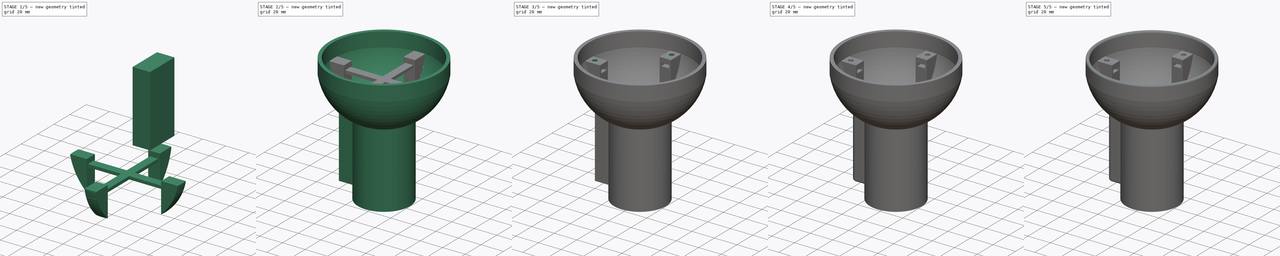
[diagram: build sequence overview — one tinted view per stage of 5, left to right]
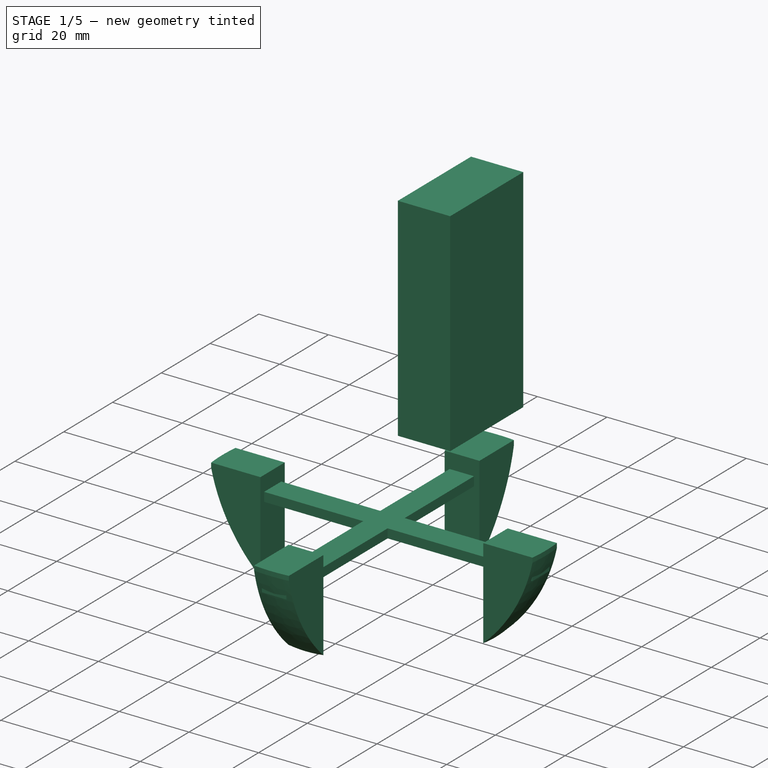
[diagram: stage 1 of 5 — iso view after this stage's code; geometry added in this stage tinted green]
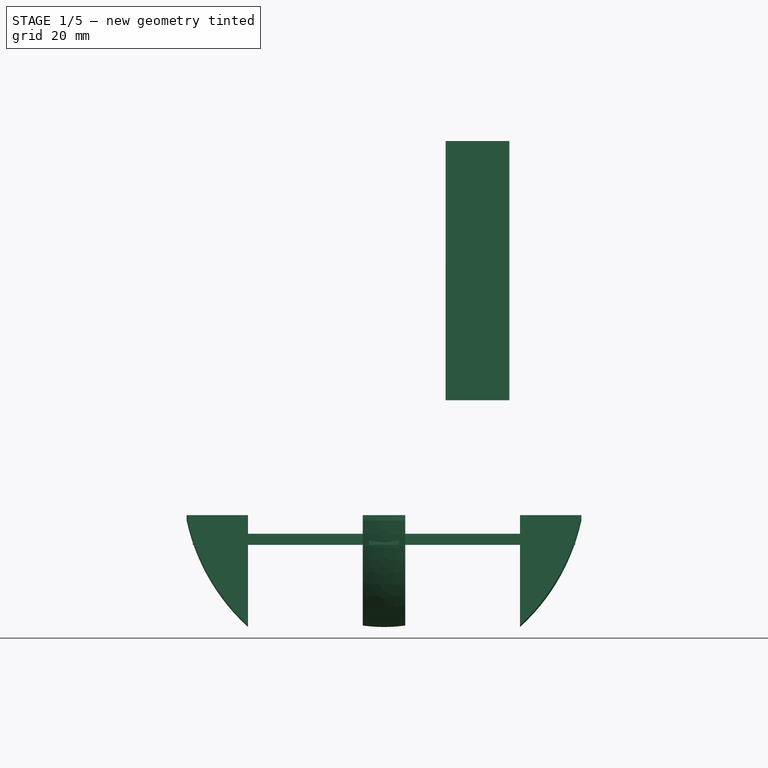
[diagram: stage 1 of 5 — front view after this stage's code; geometry added in this stage tinted green]
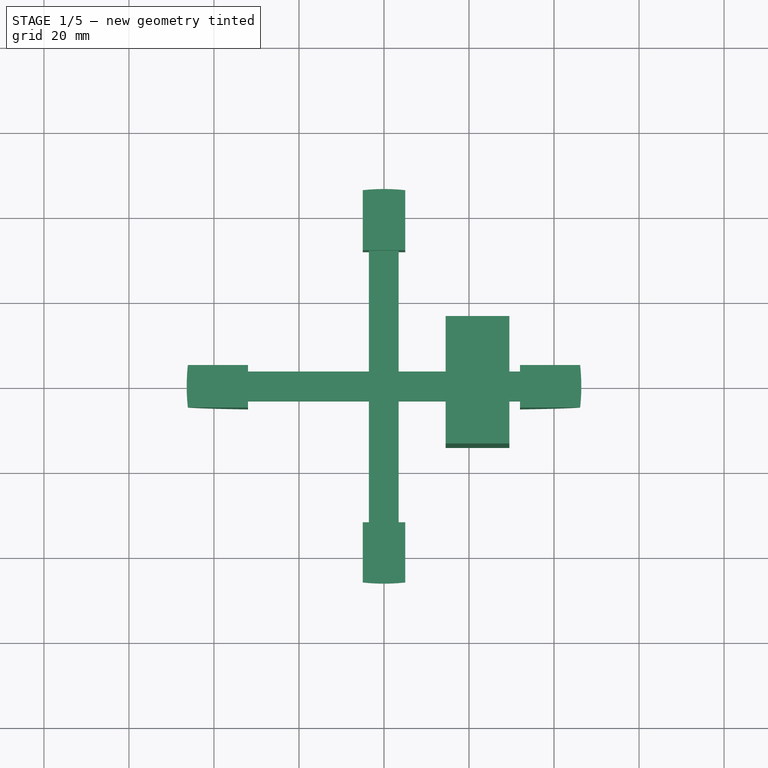
[diagram: stage 1 of 5 — top view after this stage's code; geometry added in this stage tinted green]
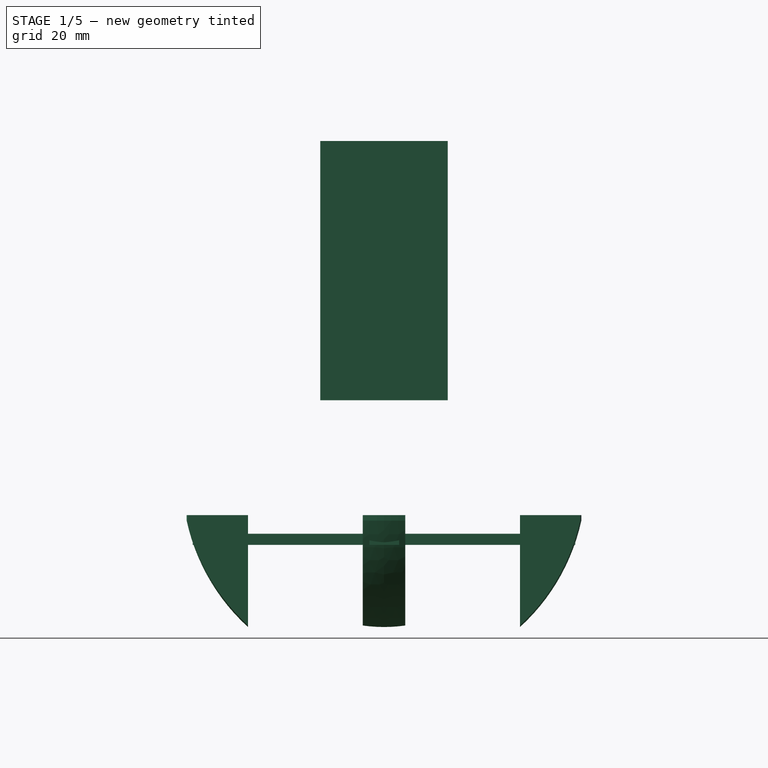
[diagram: stage 1 of 5 — right view after this stage's code; geometry added in this stage tinted green]
FCSTD DOCUMENT  (FreeCAD 0.16R6700 (Git))
Label: pieza6v2
License: CreativeCommons Attribution-ShareAlike
LicenseURL: http://creativecommons.org/licenses/by-sa/4.0/
objects: Part::Feature×9, Part::Cut×7, Part::Box×4, Part::MultiFuse×4, Part::Fillet×4, Sketcher::SketchObject×2, PartDesign::Revolution×2, Part::FeaturePython×2, Part::MultiCommon×1
note: 37 computed .brp shape members not serialized (recipe doc carries the construction recipe); baked Part::Feature solids carry a one-line shape summary decoded from their .brp

FEATURE [Part::Box] Box006  label="Cubo006"
  Height = 61
  Length = 30
  Placement = pos=(14.5,15,27) rot=(0,0,-1;1.5708rad)
  Width = 15
FEATURE [Part::Feature] Common001  label="csPreSoporte"
  shape: bbox 14.8 x 14.33 x 26.33 mm, 7 faces (baked)
FEATURE [Part::FeaturePython] Array  label="ArraySoportes"  # Draft array (typed FeaturePython)
  Angle = 360
  ArrayType = 1
  Axis = (0,0,1)
  Base = -> Common001
  Center = (0,0,0)
  Fuse = false
  IntervalAxis = (0,0,0)
  IntervalX = (1,0,0)
  IntervalY = (0,1,0)
  IntervalZ = (0,0,0)
  NumberPolar = 4
  NumberX = 2
  NumberY = 2
  NumberZ = 1
FEATURE [Part::Box] Box010  label="Cubo010"
  Height = 2.6
  Length = 90
  Placement = pos=(-45,-3.45,-7) rot=(0,0,1;0rad)
  Width = 7
FEATURE [Part::Feature] Clone016  label=" taladroTuercaM026"
  Placement = pos=(-40,-10,21.25) rot=(1,0,0;3.14159rad)
  shape: bbox 6.7 x 5.802 x 32.25 mm, 10 faces (baked)
FEATURE [Part::Box] Box011  label="Cubo011"
  Height = 2.6
  Length = 90
  Placement = pos=(3.45,-45,-7) rot=(0,0,1;1.5708rad)
  Width = 7
FEATURE [Part::MultiFuse] Fusion005
  Shapes = -> [Box010,Box011]
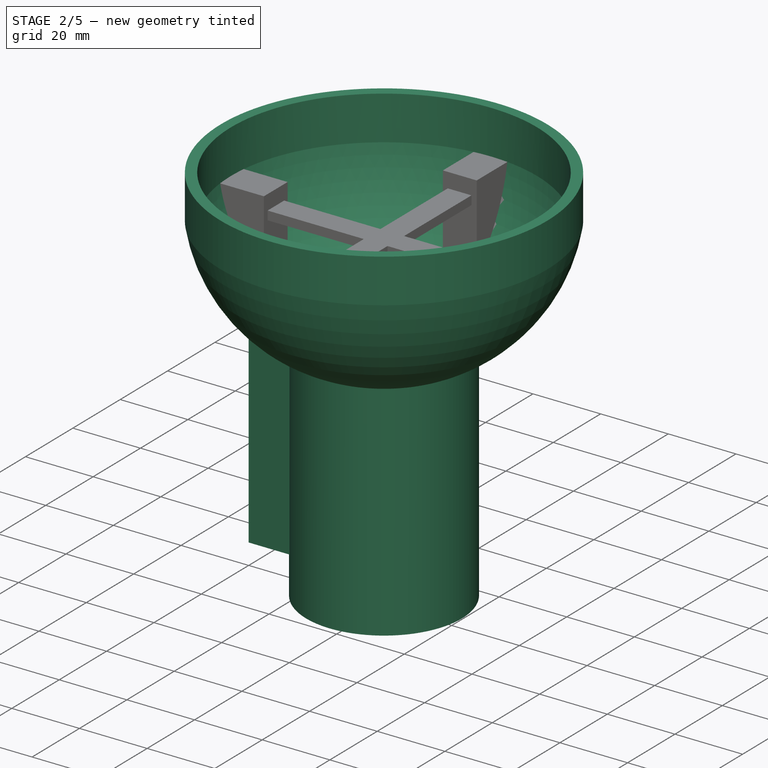
[diagram: stage 2 of 5 — iso view after this stage's code; geometry added in this stage tinted green]
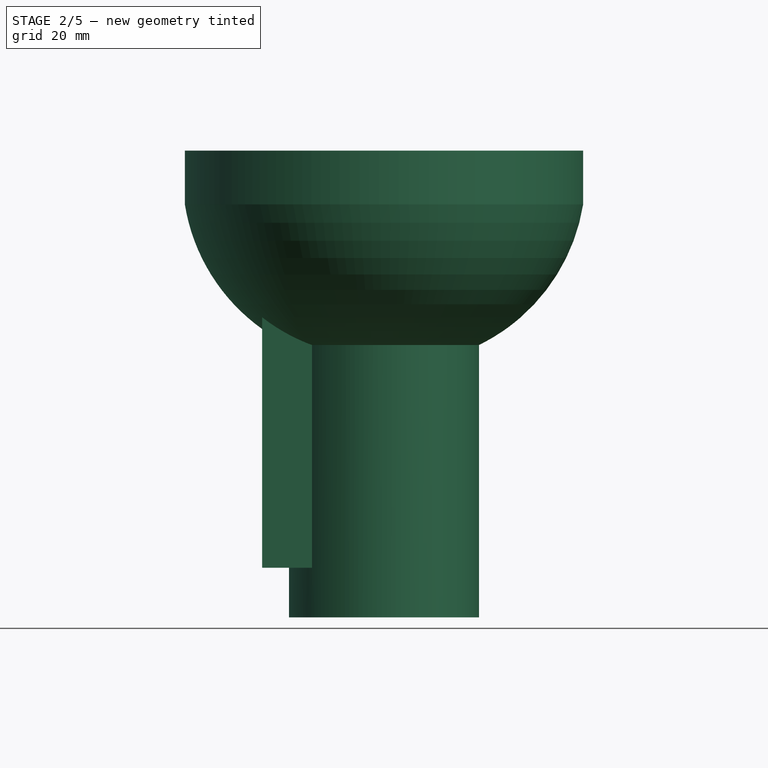
[diagram: stage 2 of 5 — front view after this stage's code; geometry added in this stage tinted green]
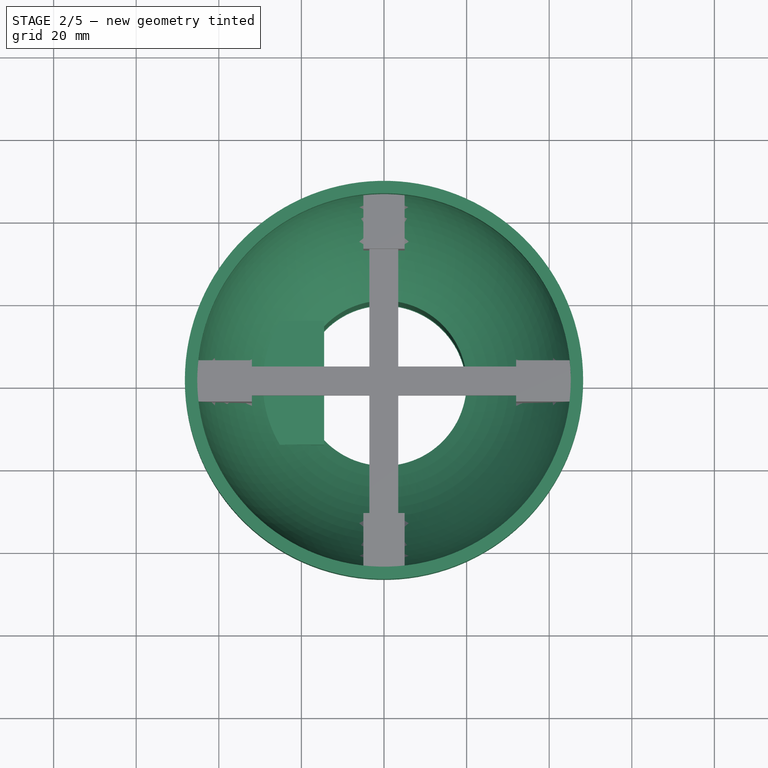
[diagram: stage 2 of 5 — top view after this stage's code; geometry added in this stage tinted green]
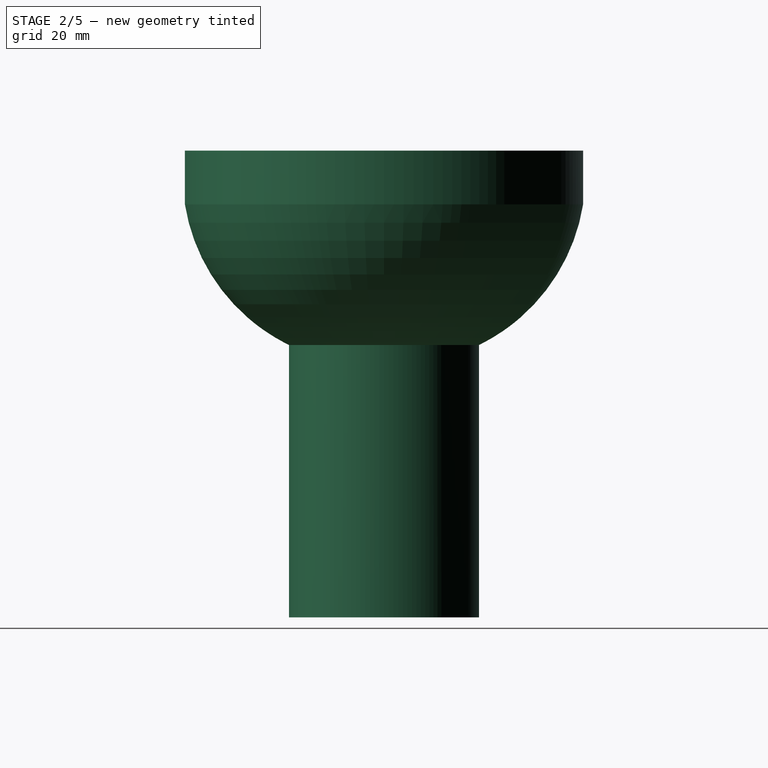
[diagram: stage 2 of 5 — right view after this stage's code; geometry added in this stage tinted green]
FEATURE [Sketcher::SketchObject] Sketch
  Placement = pos=(0,0,0) rot=(1,0,0;1.5708rad)
  sketch-geometry (10):
    g0: LineSegment StartX=20 StartY=97 StartZ=0 EndX=20 EndY=33 EndZ=0
    g1: LineSegment StartX=45.222 StartY=0 StartZ=0 EndX=45.222 EndY=-13 EndZ=0
    g2: ArcOfCircle CenterX=0 CenterY=-8.42463 CenterZ=0 NormalX=0 NormalY=0 NormalZ=1 Radius=46 StartAngle=0.184184 EndAngle=1.121
    g3: LineSegment StartX=23 StartY=100 StartZ=0 EndX=23 EndY=34.058 EndZ=0
    g4: ArcOfCircle CenterX=2.8 CenterY=-7.2695 CenterZ=0 NormalX=0 NormalY=0 NormalZ=1 Radius=46 StartAngle=0.158698 EndAngle=1.11617
    g5: LineSegment StartX=48.222 StartY=0 StartZ=0 EndX=48.222 EndY=-13 EndZ=0
    g6: LineSegment StartX=45.222 StartY=-13 StartZ=0 EndX=48.222 EndY=-13 EndZ=0
    g7: LineSegment StartX=23 StartY=100 StartZ=0 EndX=19.9 EndY=100 EndZ=0
    g8: LineSegment StartX=19.9 StartY=100 StartZ=0 EndX=19.9 EndY=97 EndZ=0
    g9: LineSegment StartX=19.9 StartY=97 StartZ=0 EndX=20 EndY=97 EndZ=0
  constraints (32):
    c: Vertical(g0)
    c: Coincident(g2,g1)
    c: Coincident(g2,g0)
    c: Vertical(g1)
    c: DistanceX(g-1,g0) = 20
    c: Radius(g2) = 46
    c: DistanceY(g1,g0) = 46
    c: PointOnObject(g2,g-2)
    c: DistanceY(g1,g0) = 110
    c: Vertical(g3)
    c: Coincident(g4,g5)
    c: Coincident(g4,g3)
    c: Vertical(g5)
    c: Equal(g2,g4) = 45
    c: DistanceX(g1,g5) = 3
    c: Coincident(g6,g1)
    c: Coincident(g6,g5)
    c: Horizontal(g6)
    c: Equal(g5,g1)
    c: PointOnObject(g4,g-1)
    c: DistanceY(g1,g1) = 13
    c: DistanceX(g2,g4) = 2.8
    c: DistanceX(g0,g3) = 3
    c: Coincident(g7,g8)
    c: Coincident(g8,g9)
    c: Horizontal(g9)
    c: Coincident(g9,g0)
    c: Vertical(g8)
    c: Coincident(g7,g3)
    c: DistanceY(g0,g3) = 3
    c: Horizontal(g7)
    c: DistanceX(g7,g7) = 3.1
FEATURE [PartDesign::Revolution] Revolution
  Angle = 360
  Axis = (0,0,1)
  Base = (0,0,0)
  Placement = pos=(0,0,0) rot=(1,0,0;1.5708rad)
  ReferenceAxis = -> Sketch [V_Axis]
  Reversed = true
  Sketch = -> Sketch
FEATURE [Part::MultiFuse] Fusion003
  Placement = pos=(0,0,74) rot=(1,0,0;3.14159rad)
FEATURE [Part::MultiFuse] Fusion
  Shapes = -> [Revolution,Box006]
FEATURE [Part::Cut] Cut  label="preCabeza"
  Base = -> Fusion
  Placement = pos=(0,0,0) rot=(0,1,0;3.14159rad)
  Tool = -> Fusion003
FEATURE [Part::MultiFuse] Fusion004
  Shapes = -> [Cut,Array]
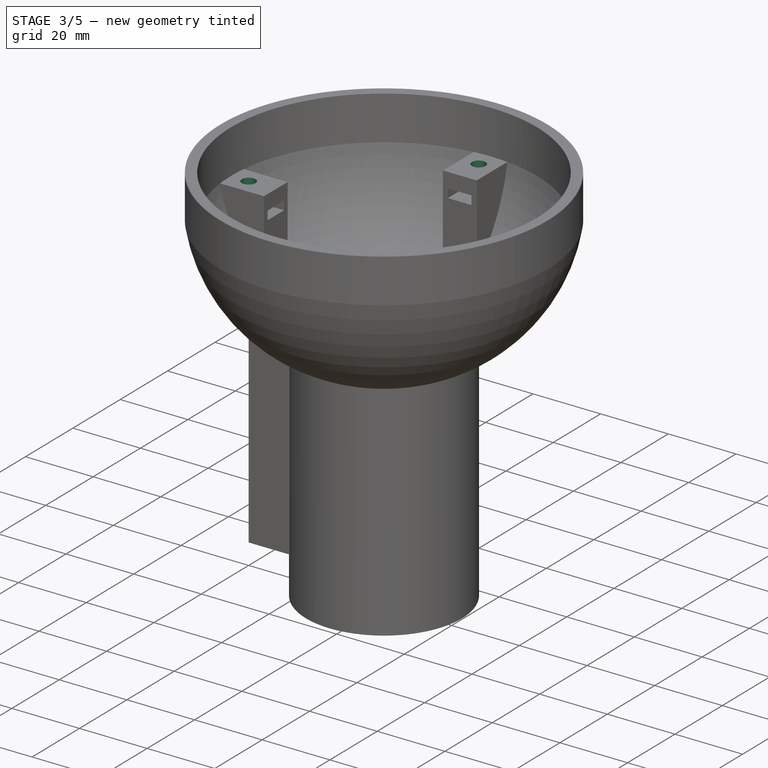
[diagram: stage 3 of 5 — iso view after this stage's code; geometry added in this stage tinted green]
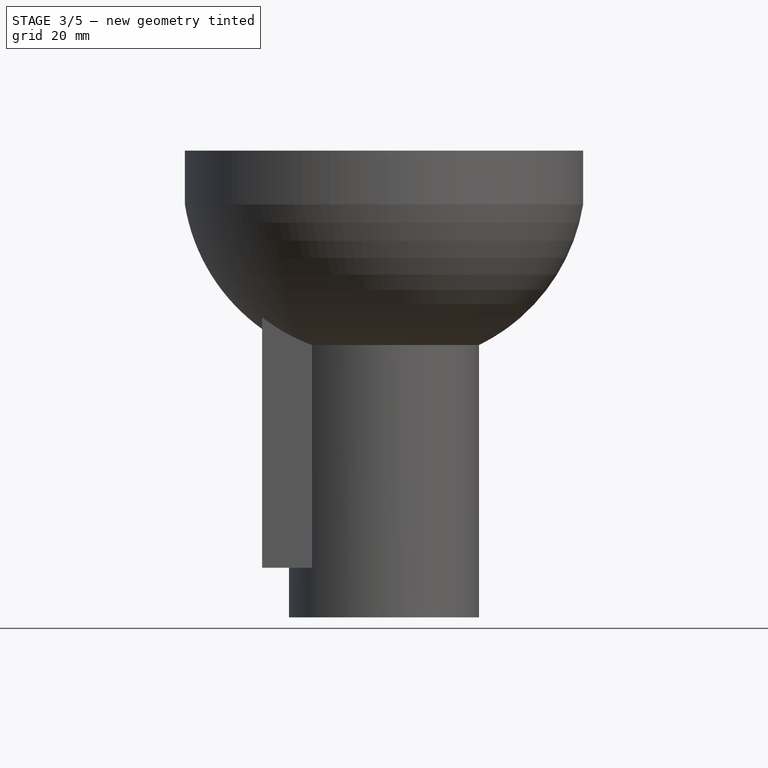
[diagram: stage 3 of 5 — front view after this stage's code; geometry added in this stage tinted green]
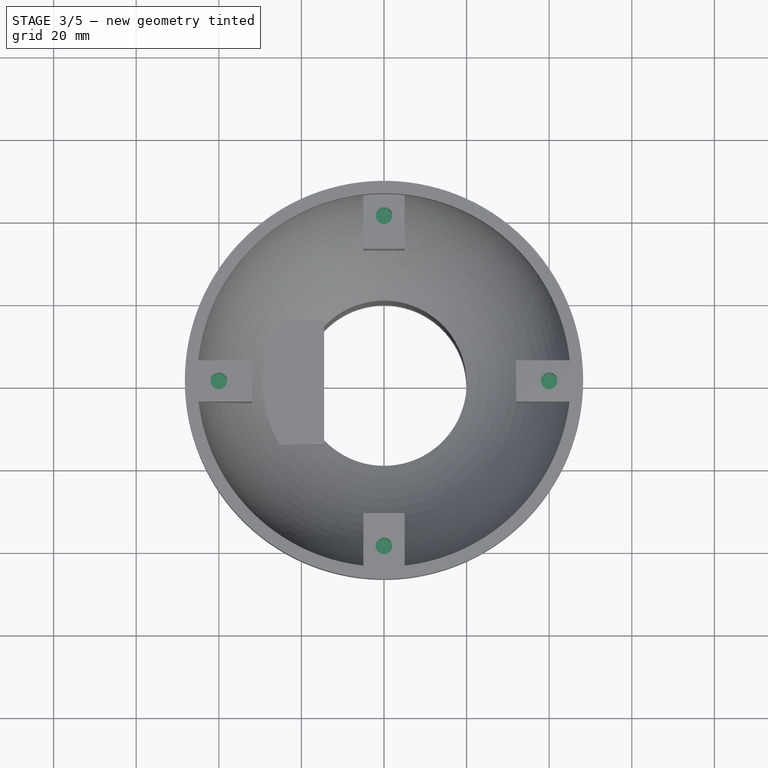
[diagram: stage 3 of 5 — top view after this stage's code; geometry added in this stage tinted green]
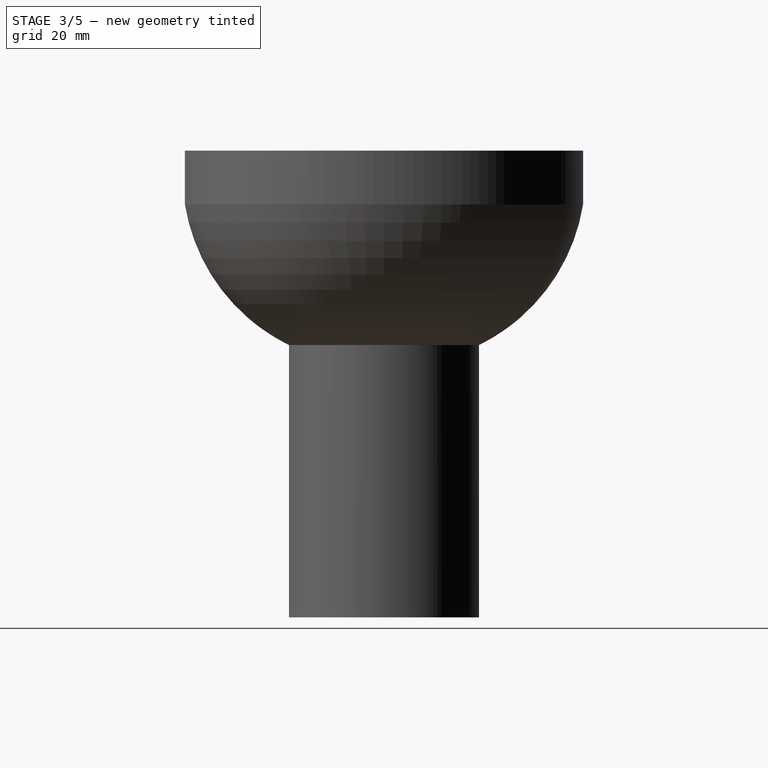
[diagram: stage 3 of 5 — right view after this stage's code; geometry added in this stage tinted green]
FEATURE [Part::FeaturePython] Array001  label="ArrayPasante"  # Draft array (typed FeaturePython)
  Angle = 360
  ArrayType = 1
  Axis = (0,0,1)
  Base = -> Clone016
  Center = (0,0,0)
  Fuse = false
  IntervalAxis = (0,0,0)
  IntervalX = (1,0,0)
  IntervalY = (0,1,0)
  IntervalZ = (0,0,0)
  NumberPolar = 4
  NumberX = 2
  NumberY = 2
  NumberZ = 1
FEATURE [Part::Cut] Cut001
  Base = -> Fusion004
  Tool = -> Fusion005
FEATURE [Part::Cut] Cut002  label="preCabeza001"
  Base = -> Cut001
  Tool = -> Array001
FEATURE [Part::Feature] Cut010  label="Futaba-3003-body-base"
  Placement = pos=(-4.5,0,-58.1) rot=(0,1,0;4.71239rad)
  shape: bbox 40.28 x 20 x 55.26 mm, 242 faces (baked)
FEATURE [Part::Feature] Clone017  label=" taladroTuercaM027"
  Placement = pos=(-14.4,-5.01,-43.62) rot=(0.57735,0.57735,-0.57735;4.18879rad)
  shape: bbox 32.25 x 6.7 x 5.802 mm, 10 faces (baked)
FEATURE [Part::Feature] Clone018  label=" taladroTuercaM028"
  Placement = pos=(-14.4,5.01,-43.62) rot=(0.57735,0.57735,-0.57735;4.18879rad)
  shape: bbox 32.25 x 6.7 x 5.802 mm, 10 faces (baked)
FEATURE [Part::Feature] Clone019  label=" taladroTuercaM029"
  Placement = pos=(-14.4,-5.01,-92.58) rot=(0.57735,0.57735,-0.57735;4.18879rad)
  shape: bbox 32.25 x 6.7 x 5.802 mm, 10 faces (baked)
FEATURE [Part::Feature] Clone020  label=" taladroTuercaM030"
  Placement = pos=(-14.4,5.01,-92.58) rot=(0.57735,0.57735,-0.57735;4.18879rad)
  shape: bbox 32.25 x 6.7 x 5.802 mm, 10 faces (baked)
FEATURE [Part::Cut] Cut011
  Base = -> Cut002
  Tool = -> Clone017
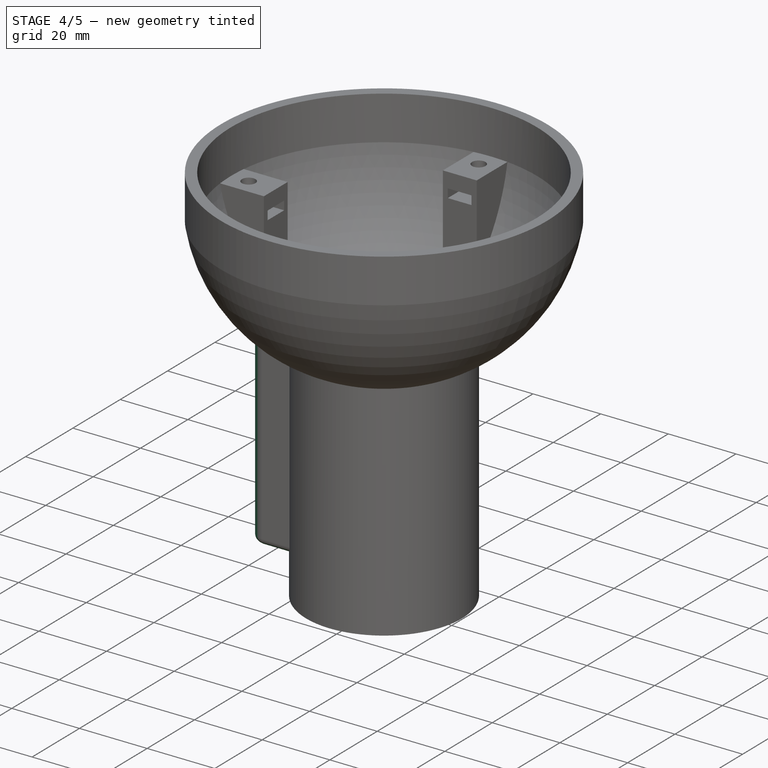
[diagram: stage 4 of 5 — iso view after this stage's code; geometry added in this stage tinted green]
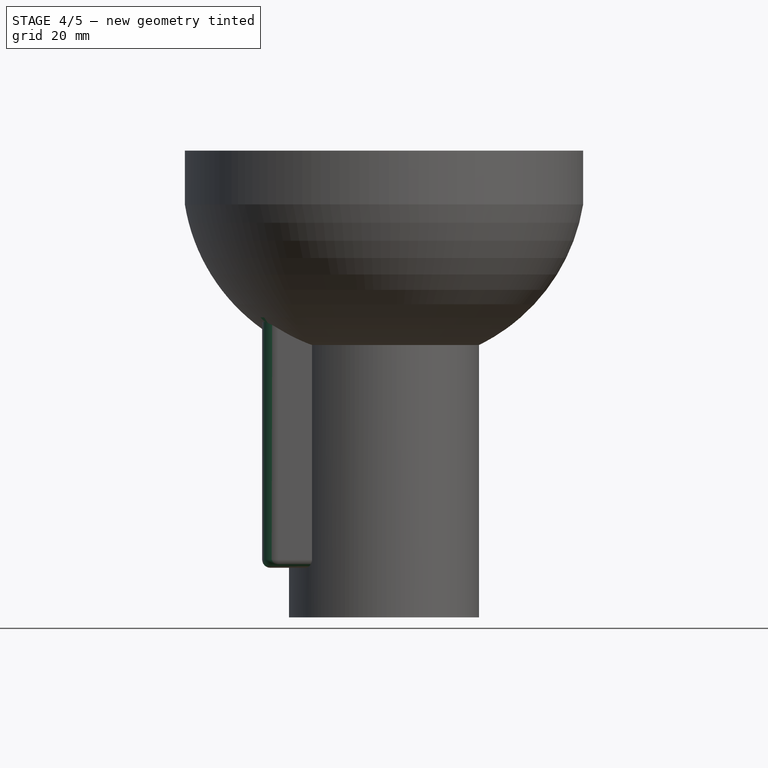
[diagram: stage 4 of 5 — front view after this stage's code; geometry added in this stage tinted green]
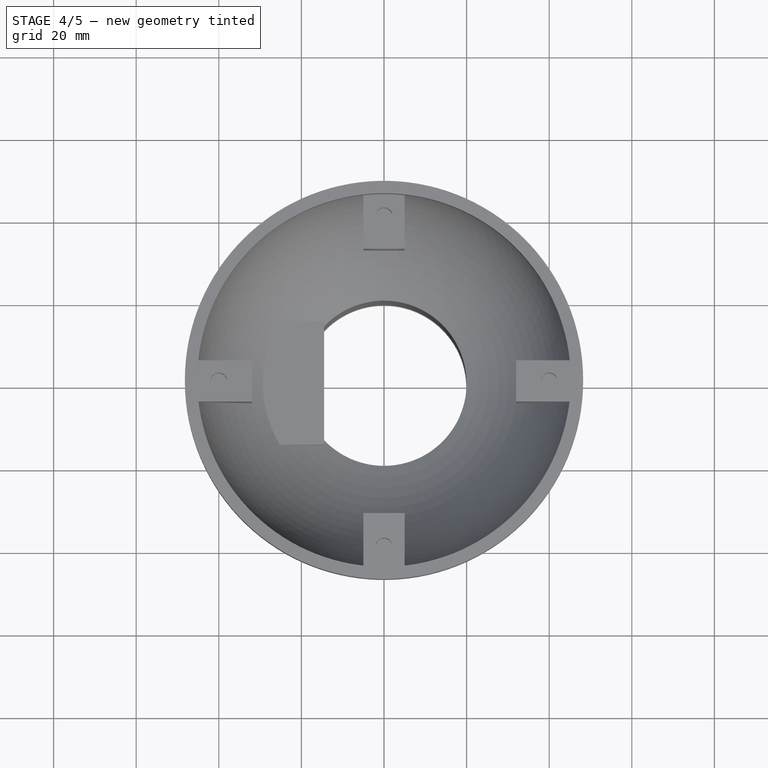
[diagram: stage 4 of 5 — top view after this stage's code; geometry added in this stage tinted green]
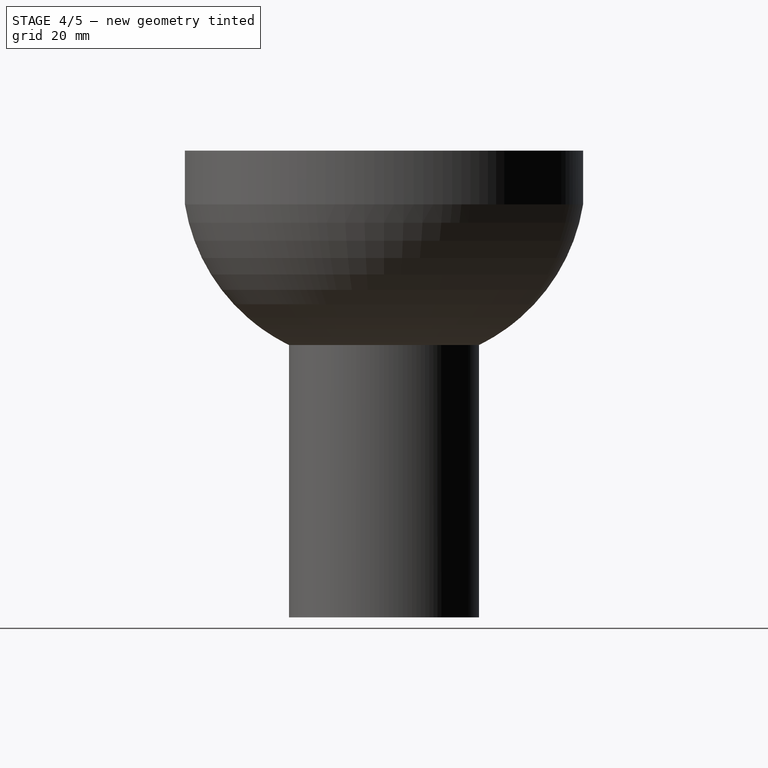
[diagram: stage 4 of 5 — right view after this stage's code; geometry added in this stage tinted green]
FEATURE [Part::Cut] Cut012
  Base = -> Cut011
  Tool = -> Clone018
FEATURE [Part::Cut] Cut013
  Base = -> Cut012
  Tool = -> Clone019
FEATURE [Part::Cut] Cut014
  Base = -> Cut013
  Tool = -> Clone020
FEATURE [Part::Fillet] Fillet
  Base = -> Cut014
  Edges = 2 edges r=4: [Edge14,Edge21]
FEATURE [Part::Fillet] Fillet002004
  Base = -> Fillet
  Edges = 1 edges r=2: [Edge4]
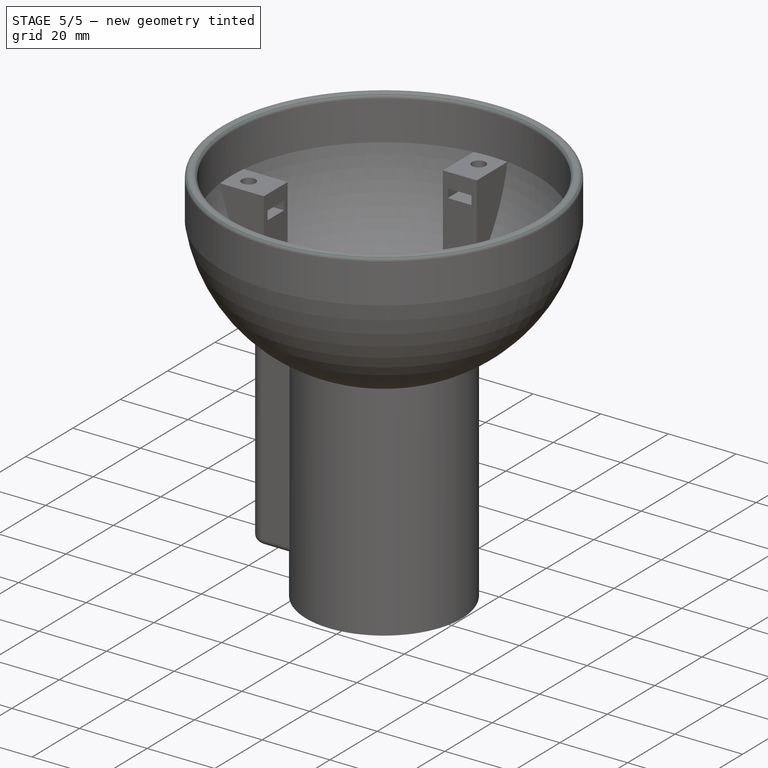
[diagram: stage 5 of 5 — iso view after this stage's code; geometry added in this stage tinted green]
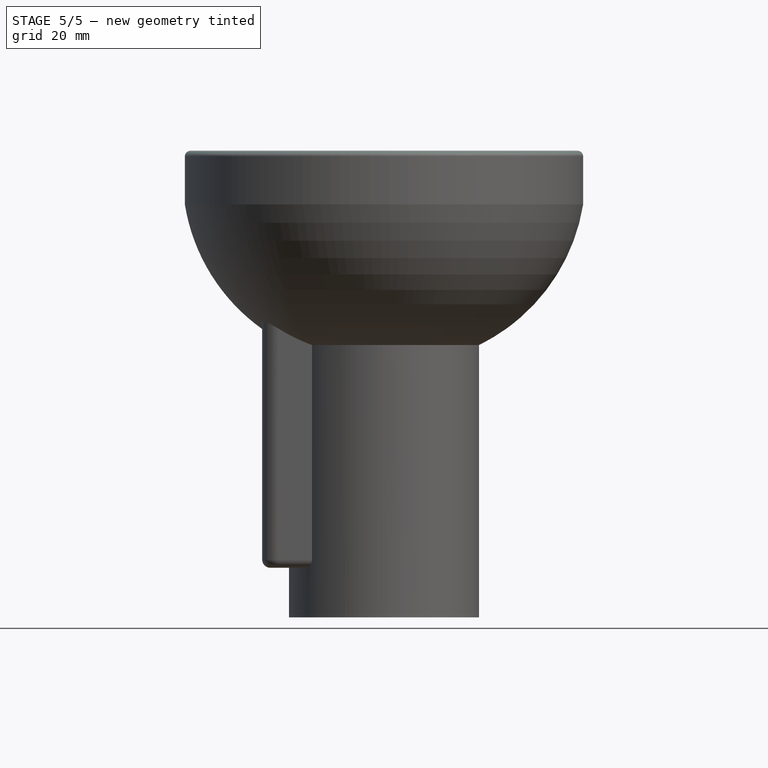
[diagram: stage 5 of 5 — front view after this stage's code; geometry added in this stage tinted green]
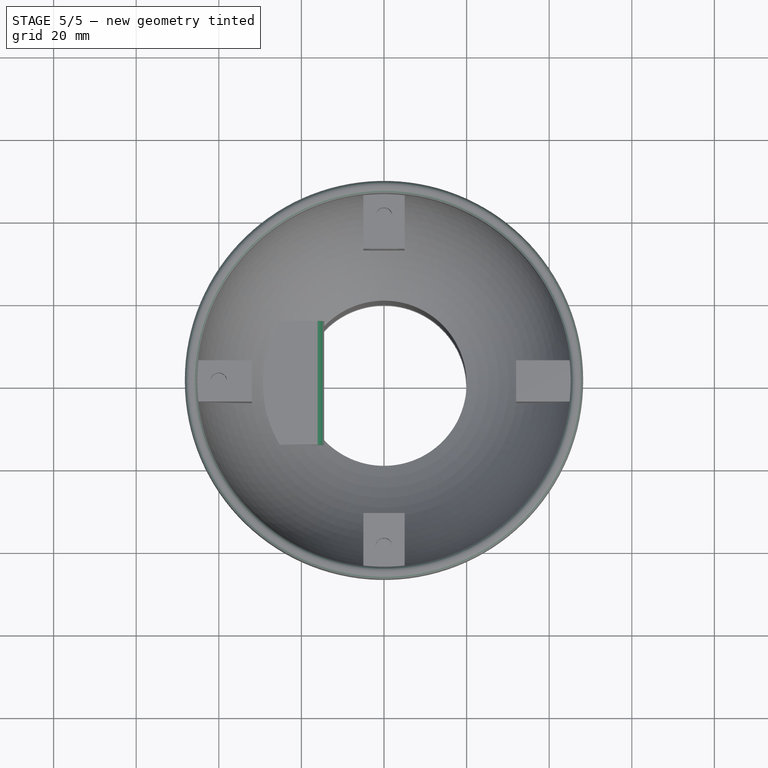
[diagram: stage 5 of 5 — top view after this stage's code; geometry added in this stage tinted green]
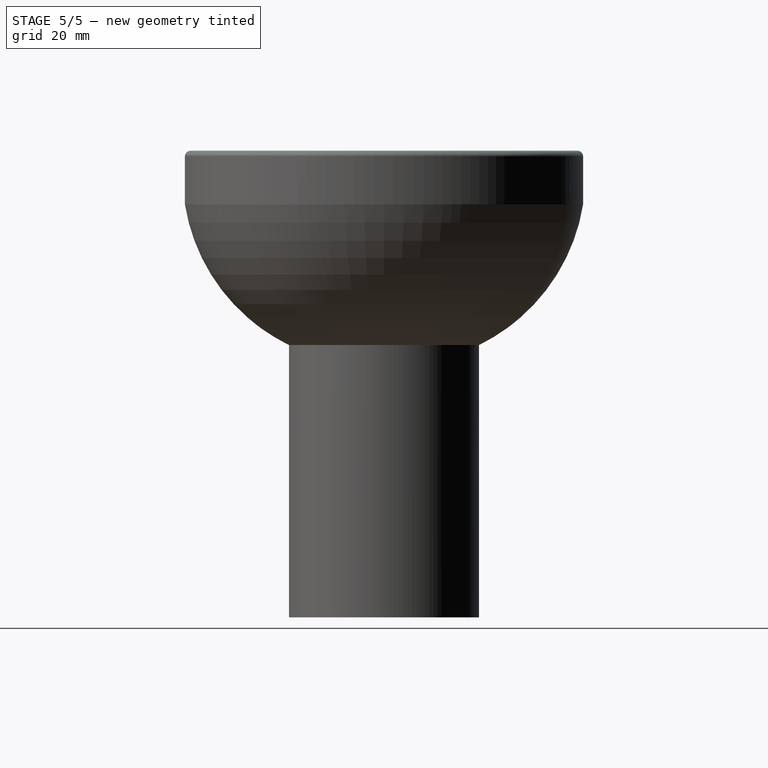
[diagram: stage 5 of 5 — right view after this stage's code; geometry added in this stage tinted green]
FEATURE [Part::Feature] Fillet002003  label="csPortaCamara45"
  Placement = pos=(0,0,-56) rot=(1,0,0;3.14159rad)
  shape: bbox 97.42 x 97.42 x 17 mm, 73 faces (baked)
FEATURE [Part::Box] Box  label="Cubo"
  Height = 30
  Length = 15
  Placement = pos=(32,-5,-30) rot=(0,0,1;0rad)
  Width = 10
FEATURE [Sketcher::SketchObject] Sketch001
  Placement = pos=(0,0,0) rot=(-1,0,0;1.5708rad)
  sketch-geometry (6):
    g0: LineSegment StartX=20 StartY=50.8046 StartZ=0 EndX=20 EndY=34.3146 EndZ=0
    g1: LineSegment StartX=46.4172 StartY=1.3146 StartZ=0 EndX=46.4172 EndY=-11.6854 EndZ=0
    g2: ArcOfCircle CenterX=0 CenterY=-8.76962 CenterZ=0 NormalX=0 NormalY=0 NormalZ=1 Radius=47.5 StartAngle=0.213927 EndAngle=1.13619
    g3: LineSegment StartX=46.4172 StartY=-11.6854 StartZ=0 EndX=0 EndY=-11.6854 EndZ=0
    g4: LineSegment StartX=0 StartY=50.8046 StartZ=0 EndX=0 EndY=-11.6854 EndZ=0
    g5: LineSegment StartX=20 StartY=50.8046 StartZ=0 EndX=0 EndY=50.8046 EndZ=0
  constraints (18):
    c: Vertical(g0)
    c: Coincident(g2,g1)
    c: Coincident(g2,g0)
    c: Vertical(g1)
    c: DistanceX(g-1,g0) = 20
    c: Radius(g2) = 47.5
    c: DistanceY(g1,g0) = 46
    c: PointOnObject(g2,g-2)
    c: DistanceY(g1,g1) = 13
    c: PointOnObject(g3,g-2)
    c: PointOnObject(g4,g-2)
    c: Coincident(g4,g3)
    c: Coincident(g3,g1)
    c: Horizontal(g3)
    c: DistanceY(g3,g-1) = 11.6854
    c: Horizontal(g5)
    c: Coincident(g4,g5)
    c: Coincident(g5,g0)
FEATURE [PartDesign::Revolution] Revolution001
  Angle = 360
  Axis = (0,0,-1)
  Base = (0,0,0)
  Placement = pos=(0,0,0) rot=(-1,0,0;1.5708rad)
  ReferenceAxis = -> Sketch001 [V_Axis]
  Reversed = true
  Sketch = -> Sketch001
FEATURE [Part::MultiCommon] Common  label="soporte"
  Shapes = -> [Revolution001,Box]
FEATURE [Part::Fillet] Fillet002005
  Base = -> Fillet002004
  Edges = 2 edges r=1.4: [Edge51,Edge86]
FEATURE [Part::Fillet] Fillet002006  label="Tulipa"
  Base = -> Fillet002005
  Edges = 1 edges r=3: [Edge105]
FEATURE [Part::Feature] Fillet002006001  label="csTulipa"
  shape: bbox 104.4 x 104.4 x 113 mm, 117 faces (baked)
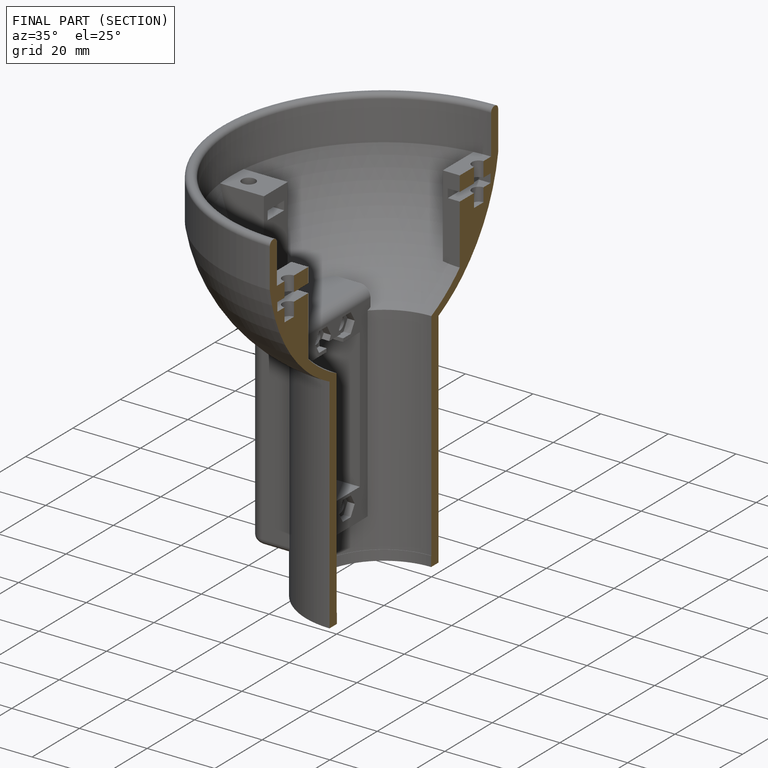
[diagram: finished part — half-section view (interior)]
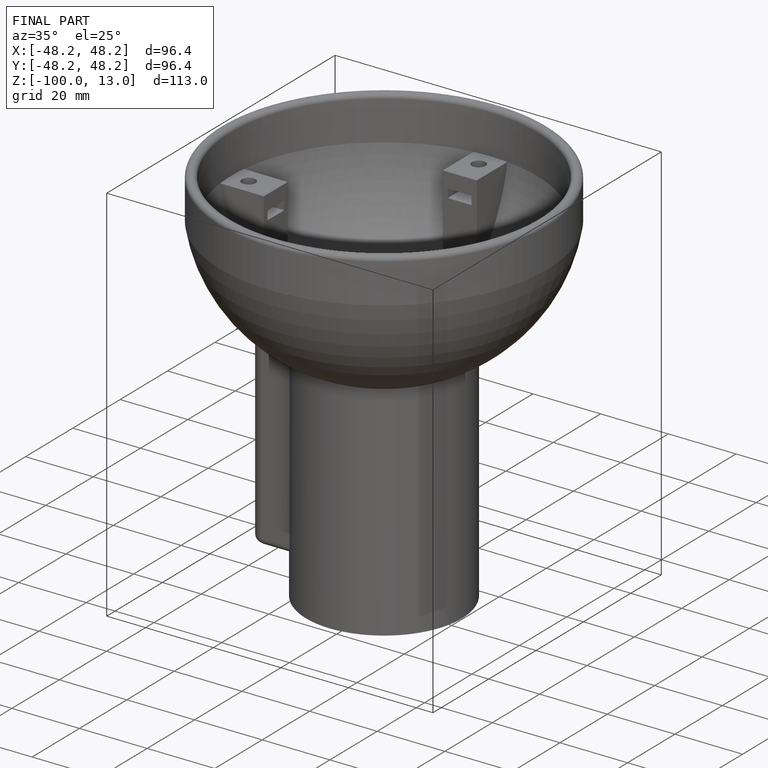
[diagram: finished part — iso view with bounding-box wireframe]
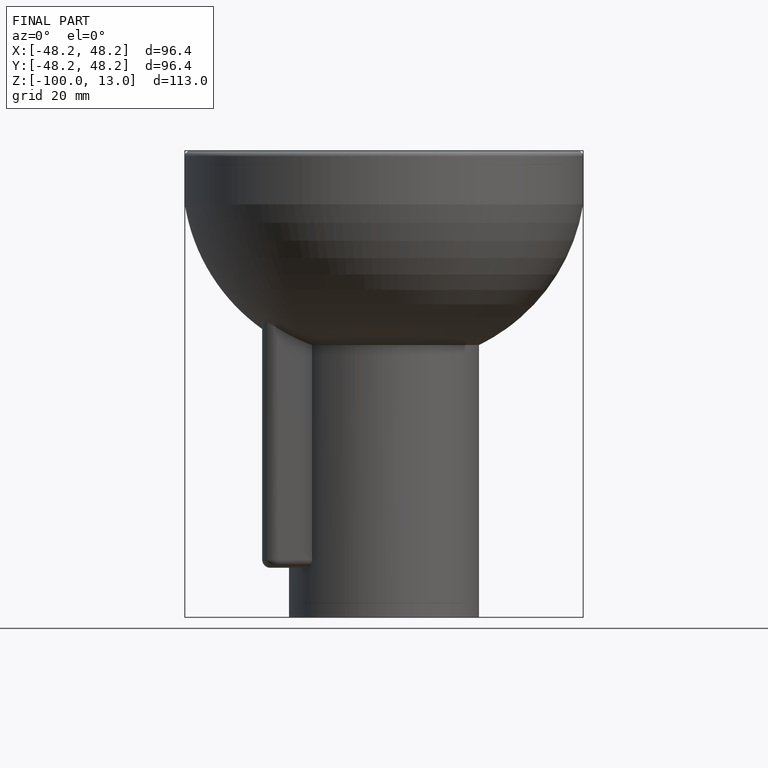
[diagram: finished part — front view with bounding-box wireframe]
